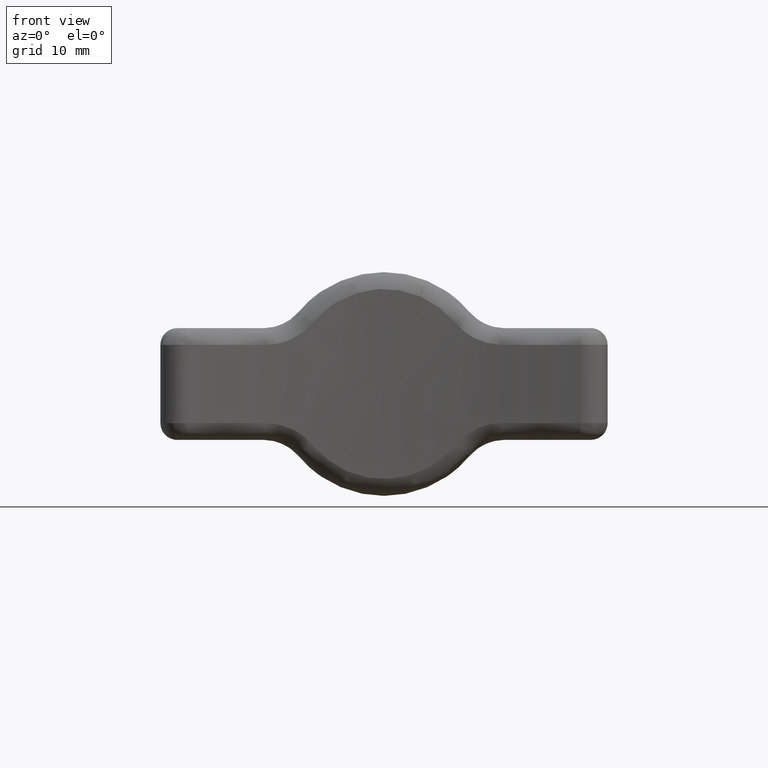
[diagram: clean part render]
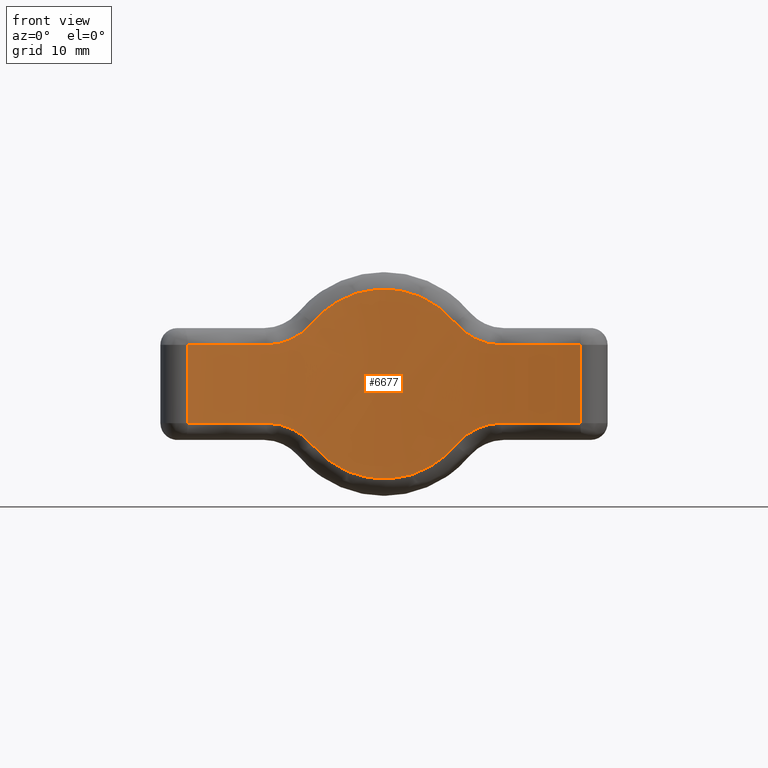
[diagram: same view with one face highlighted and labeled with its STEP entity id]
A machine part, front view. The second image highlights one B-rep face of the part: STEP entity #6677.
In plain terms, the highlighted face is a freeform B-spline surface patch.
Its self-contained STEP definition (entity closure, byte-faithful):
#5173=CARTESIAN_POINT('',(-10.526435067400540,-26.895561022378502,-3.500000237480295));
#5174=VERTEX_POINT('',#5173);
#5191=CARTESIAN_POINT('',(-6.391050002650499,-26.455693917424099,-5.464285978425500));
#5192=VERTEX_POINT('',#5191);
#5208=CARTESIAN_POINT('',(-10.526435067400540,-26.895561022378502,-3.500000237480295));
#5209=CARTESIAN_POINT('',(-10.130577779867281,-26.843017106241280,-3.500000237480295));
#5210=CARTESIAN_POINT('',(-9.741852792492267,-26.794433492696822,-3.543825192933341));
#5211=CARTESIAN_POINT('',(-9.169118083600051,-26.726959905391102,-3.672933948192796));
#5212=CARTESIAN_POINT('',(-8.979948021334016,-26.705371621441060,-3.726626277660668));
#5213=CARTESIAN_POINT('',(-8.698910053578945,-26.674295213789790,-3.823718820202365));
#5214=CARTESIAN_POINT('',(-8.605988525210959,-26.664188731852828,-3.858761242788340));
#5215=CARTESIAN_POINT('',(-8.423315668423788,-26.644635218307300,-3.933490456663368));
#5216=CARTESIAN_POINT('',(-8.333312132431573,-26.635160189398690,-3.973262377902760));
#5217=CARTESIAN_POINT('',(-7.889849734918664,-26.589213306685760,-4.183951560300534));
#5218=CARTESIAN_POINT('',(-7.555825866689244,-26.556996409445400,-4.389944560689119));
#5219=CARTESIAN_POINT('',(-7.164827280628694,-26.521450257237319,-4.695127743851798));
#5220=CARTESIAN_POINT('',(-7.087892220328410,-26.514572848698311,-4.758660424650226));
#5221=CARTESIAN_POINT('',(-6.938228932694358,-26.501402173134242,-4.889342066564419));
#5222=CARTESIAN_POINT('',(-6.865313523243134,-26.495091600107980,-4.956628074293811));
#5223=CARTESIAN_POINT('',(-6.652269647967869,-26.476932445369780,-5.164270768396017));
#5224=CARTESIAN_POINT('',(-6.517826621629490,-26.465854337697600,-5.310394985060838));
#5225=CARTESIAN_POINT('',(-6.391050002650499,-26.455693917424050,-5.464285978425500));
#5226=B_SPLINE_CURVE_WITH_KNOTS('',3,(#5208,#5209,#5210,#5211,#5212,#5213,#5214,#5215,#5216,#5217,#5218,#5219,#5220,#5221,#5222,#5223,#5224,#5225),.UNSPECIFIED.,.F.,.U.,(4,2,2,2,2,2,2,2,4),(0.0,0.250000000000001,0.375000000000001,0.437500000000001,0.500000000000001,0.750000000000000,0.812500000000000,0.875000000000000,1.0),.UNSPECIFIED.);
#5227=EDGE_CURVE('',#5174,#5192,#5226,.T.);
#5282=CARTESIAN_POINT('',(-17.560976556879499,-28.151220440487648,-3.500000237480315));
#5283=VERTEX_POINT('',#5282);
#5299=CARTESIAN_POINT('',(-17.560976556879510,-28.151220440487581,-3.500000237480315));
#5300=CARTESIAN_POINT('',(-14.071773200395381,-27.366149679970167,-3.500000237480315));
#5301=CARTESIAN_POINT('',(-10.526435067400559,-26.895561022378430,-3.500000237480315));
#5309=(BOUNDED_CURVE()B_SPLINE_CURVE(2,(#5299,#5300,#5301),.UNSPECIFIED.,.F.,.U.)CURVE()GEOMETRIC_REPRESENTATION_ITEM()QUASI_UNIFORM_CURVE()RATIONAL_B_SPLINE_CURVE((1.0,0.999002208266553,1.0))REPRESENTATION_ITEM(''));
#5310=EDGE_CURVE('',#5283,#5174,#5309,.T.);
#5383=CARTESIAN_POINT('',(-17.560976556879499,-28.151220440487648,3.500000237480430));
#5384=VERTEX_POINT('',#5383);
#5385=CARTESIAN_POINT('',(-17.560976556879499,-28.151220440487648,3.500000237480430));
#5386=CARTESIAN_POINT('',(-17.560976556879499,-28.151220440487648,-3.500000237480315));
#5387=QUASI_UNIFORM_CURVE('',1,(#5385,#5386),.UNSPECIFIED.,.F.,.U.);
#5388=EDGE_CURVE('',#5384,#5283,#5387,.T.);
#5524=CARTESIAN_POINT('',(-10.526435067400520,-26.895561022378502,3.500000237480390));
#5525=VERTEX_POINT('',#5524);
#5543=CARTESIAN_POINT('',(-10.526435067400520,-26.895561022378502,3.500000237480390));
#5544=CARTESIAN_POINT('',(-14.071773200395429,-27.366149679970174,3.500000237480205));
#5545=CARTESIAN_POINT('',(-17.560976556879499,-28.151220440487648,3.500000237480430));
#5553=(BOUNDED_CURVE()B_SPLINE_CURVE(2,(#5543,#5544,#5545),.UNSPECIFIED.,.F.,.U.)CURVE()GEOMETRIC_REPRESENTATION_ITEM()QUASI_UNIFORM_CURVE()RATIONAL_B_SPLINE_CURVE((1.0,0.999002208266553,1.0))REPRESENTATION_ITEM(''));
#5554=EDGE_CURVE('',#5525,#5384,#5553,.T.);
#5637=CARTESIAN_POINT('',(-6.391050002650440,-26.455693917424050,5.464285978425530));
#5638=VERTEX_POINT('',#5637);
#5656=CARTESIAN_POINT('',(-6.391050002650440,-26.455693917424099,5.464285978425530));
#5657=CARTESIAN_POINT('',(-6.644561526023513,-26.476011414786040,5.156554627996201));
#5658=CARTESIAN_POINT('',(-6.926476486287818,-26.499809816724969,4.882011662247812));
#5659=CARTESIAN_POINT('',(-7.390578083616430,-26.541959861097911,4.518515766391896));
#5660=CARTESIAN_POINT('',(-7.552210279049481,-26.557092200470571,4.405473781155308));
#5661=CARTESIAN_POINT('',(-7.805444856683725,-26.581647236465489,4.248569104078700));
#5662=CARTESIAN_POINT('',(-7.891406317371629,-26.590118854423601,4.198557946793994));
#5663=CARTESIAN_POINT('',(-8.064844133601683,-26.607501867703409,4.103955566847487));
#5664=CARTESIAN_POINT('',(-8.152544396330605,-26.616434862528500,4.059223357296433));
#5665=CARTESIAN_POINT('',(-8.595872474024892,-26.662348628633950,3.848214622662055));
#5666=CARTESIAN_POINT('',(-8.965808263239190,-26.703051094687119,3.719448839352444));
#5667=CARTESIAN_POINT('',(-9.447777756667655,-26.759778502978310,3.609955608933347));
#5668=CARTESIAN_POINT('',(-9.545207589877181,-26.771425025578392,3.590668079098883));
#5669=CARTESIAN_POINT('',(-9.740089976543416,-26.795087319057089,3.557722971424100));
#5670=CARTESIAN_POINT('',(-9.837785120604163,-26.807131278989221,3.544004644401598));
#5671=CARTESIAN_POINT('',(-10.131625364801611,-26.843910005436989,3.511053658320358));
#5672=CARTESIAN_POINT('',(-10.328522801363929,-26.869291238199569,3.500000237480392));
#5673=CARTESIAN_POINT('',(-10.526435067400520,-26.895561022378502,3.500000237480395));
#5674=B_SPLINE_CURVE_WITH_KNOTS('',3,(#5656,#5657,#5658,#5659,#5660,#5661,#5662,#5663,#5664,#5665,#5666,#5667,#5668,#5669,#5670,#5671,#5672,#5673),.UNSPECIFIED.,.F.,.U.,(4,2,2,2,2,2,2,2,4),(0.0,0.250000000000001,0.375000000000002,0.437500000000002,0.500000000000003,0.750000000000002,0.812500000000001,0.875000000000001,1.0),.UNSPECIFIED.);
#5675=EDGE_CURVE('',#5638,#5525,#5674,.T.);
#5838=CARTESIAN_POINT('',(6.391050002650680,-26.455693917424099,5.464285978425240));
#5839=VERTEX_POINT('',#5838);
#5857=CARTESIAN_POINT('',(6.391050002650680,-26.455693917424099,5.464285978425240));
#5858=CARTESIAN_POINT('',(6.293371294482209,-26.447865528129910,5.582855739566408));
#5859=CARTESIAN_POINT('',(6.192551212521130,-26.439965804935401,5.698666154532956));
#5860=CARTESIAN_POINT('',(5.984611256463105,-26.424094030338640,5.924758156369663));
#5861=CARTESIAN_POINT('',(5.877787165092706,-26.416145202658750,6.034703189377578));
#5862=CARTESIAN_POINT('',(5.550064845316837,-26.392452512122329,6.354191130201660));
#5863=CARTESIAN_POINT('',(5.321464958937026,-26.376826482880421,6.553935483708296));
#5864=CARTESIAN_POINT('',(4.844319461126886,-26.346449118828509,6.927353736671916));
#5865=CARTESIAN_POINT('',(4.595774147143893,-26.331696709733759,7.101027939006829));
#5866=CARTESIAN_POINT('',(4.207678117812892,-26.310625856935729,7.341601143357362));
#5867=CARTESIAN_POINT('',(4.075760856174740,-26.303778640014290,7.418461896308346));
#5868=CARTESIAN_POINT('',(3.873963189471393,-26.293824918530490,7.528638740507209));
#5869=CARTESIAN_POINT('',(3.805935370491146,-26.290554954739779,7.564564914237273));
#5870=CARTESIAN_POINT('',(3.669259629578118,-26.284162488292541,7.634329849871089));
#5871=CARTESIAN_POINT('',(3.600587977800833,-26.281038495891011,7.668186084892131));
#5872=CARTESIAN_POINT('',(3.255578311411480,-26.265793243121351,7.832391563014685));
#5873=CARTESIAN_POINT('',(2.693023749169934,-26.243800612429890,8.062728614404328));
#5874=CARTESIAN_POINT('',(2.109795327234481,-26.227274589099220,8.229598032148205));
#5875=CARTESIAN_POINT('',(1.664494700295122,-26.217180771376839,8.330581952710229));
#5876=CARTESIAN_POINT('',(1.514745077920458,-26.214199672433580,8.360206383309411));
#5877=CARTESIAN_POINT('',(1.212556025246131,-26.209047920839520,8.411207230286349));
#5878=CARTESIAN_POINT('',(1.059823314265704,-26.206876522884620,8.432590748546417));
#5879=CARTESIAN_POINT('',(0.603313721844945,-26.201696783408849,8.483485306310628));
#5880=CARTESIAN_POINT('',(0.299490858484786,-26.199986383095052,8.500141399010468));
#5881=CARTESIAN_POINT('',(-0.307149426189229,-26.200015420566789,8.499857760532898));
#5882=CARTESIAN_POINT('',(-0.609966787867177,-26.201754928634731,8.482916023127569));
#5883=CARTESIAN_POINT('',(-1.063432710124047,-26.206926348565489,8.432100135845277));
#5884=CARTESIAN_POINT('',(-1.214461055659348,-26.209077190037029,8.410918337501544));
#5885=CARTESIAN_POINT('',(-1.516259375190561,-26.214228732856419,8.359917819930477));
#5886=CARTESIAN_POINT('',(-1.667498245100921,-26.217241416038760,8.329978891333608));
#5887=CARTESIAN_POINT('',(-2.115885746064728,-26.227427824248380,8.228057516104993));
#5888=CARTESIAN_POINT('',(-2.408460575317957,-26.235749639772159,8.144006378914602));
#5889=CARTESIAN_POINT('',(-2.981362303135902,-26.255059590918869,7.944817275486904));
#5890=CARTESIAN_POINT('',(-3.261687912672313,-26.266048531550378,7.829676086979580));
#5891=CARTESIAN_POINT('',(-3.672992325864676,-26.284245407263320,7.633627168148545));
#5892=CARTESIAN_POINT('',(-3.808559781608591,-26.290596630739721,7.564379440235155));
#5893=CARTESIAN_POINT('',(-4.009579428731145,-26.300515365174160,7.454579200501201));
#5894=CARTESIAN_POINT('',(-4.076197167955161,-26.303886918577849,7.416990447931961));
#5895=CARTESIAN_POINT('',(-4.208647195805665,-26.310754430173802,7.339814974892612));
#5896=CARTESIAN_POINT('',(-4.274573353347285,-26.314255631156222,7.300167804702229));
#5897=CARTESIAN_POINT('',(-4.600409187918978,-26.331957232025651,7.098016321114653));
#5898=CARTESIAN_POINT('',(-4.849842462669082,-26.346784124241360,6.923355170303833));
#5899=CARTESIAN_POINT('',(-5.327145426791576,-26.377205138535071,6.549158428926537));
#5900=CARTESIAN_POINT('',(-5.555012192955783,-26.392800404205008,6.349619546492324));
#5901=CARTESIAN_POINT('',(-5.989288152477979,-26.424216108500790,5.925748121795833));
#5902=CARTESIAN_POINT('',(-6.195699057992465,-26.440037657503670,5.701417644897261));
#5903=CARTESIAN_POINT('',(-6.391050002650438,-26.455693917424050,5.464285978425533));
#5904=B_SPLINE_CURVE_WITH_KNOTS('',3,(#5857,#5858,#5859,#5860,#5861,#5862,#5863,#5864,#5865,#5866,#5867,#5868,#5869,#5870,#5871,#5872,#5873,#5874,#5875,#5876,#5877,#5878,#5879,#5880,#5881,#5882,#5883,#5884,#5885,#5886,#5887,#5888,#5889,#5890,#5891,#5892,#5893,#5894,#5895,#5896,#5897,#5898,#5899,#5900,#5901,#5902,#5903),.UNSPECIFIED.,.F.,.U.,(4,2,2,2,2,2,2,2,1,2,2,2,2,2,2,2,2,2,2,2,2,2,2,4),(0.0,0.031250000000000,0.062500000000000,0.125000000000000,0.187500000000000,0.218750000000000,0.234375000000000,0.250000000000000,0.312500000000000,0.375000000000000,0.406250000000000,0.437500000000000,0.500000000000000,0.562500000000000,0.593750000000001,0.625000000000001,0.687500000000001,0.750000000000001,0.781250000000001,0.796875000000001,0.812500000000001,0.875000000000001,0.937500000000000,1.0),.UNSPECIFIED.);
#5905=EDGE_CURVE('',#5839,#5638,#5904,.T.);
#5948=CARTESIAN_POINT('',(10.526435067400760,-26.895561022378502,3.500000237479940));
#5949=VERTEX_POINT('',#5948);
#5965=CARTESIAN_POINT('',(10.526435067400760,-26.895561022378502,3.500000237479910));
#5966=CARTESIAN_POINT('',(10.130577779867490,-26.843017106241280,3.500000237479916));
#5967=CARTESIAN_POINT('',(9.741852792492461,-26.794433492696861,3.543825192932974));
#5968=CARTESIAN_POINT('',(9.169118083600241,-26.726959905391130,3.672933948192443));
#5969=CARTESIAN_POINT('',(8.979948021334199,-26.705371621441099,3.726626277660321));
#5970=CARTESIAN_POINT('',(8.698910053579125,-26.674295213789811,3.823718820202027));
#5971=CARTESIAN_POINT('',(8.605988525211142,-26.664188731852860,3.858761242788001));
#5972=CARTESIAN_POINT('',(8.423315668423971,-26.644635218307329,3.933490456663035));
#5973=CARTESIAN_POINT('',(8.333312132431756,-26.635160189398690,3.973262377902429));
#5974=CARTESIAN_POINT('',(7.889849734918846,-26.589213306685771,4.183951560300216));
#5975=CARTESIAN_POINT('',(7.555825866689423,-26.556996409445411,4.389944560688815));
#5976=CARTESIAN_POINT('',(7.164827280628876,-26.521450257237358,4.695127743851512));
#5977=CARTESIAN_POINT('',(7.087892220328591,-26.514572848698350,4.758660424649944));
#5978=CARTESIAN_POINT('',(6.938228932694535,-26.501402173134281,4.889342066564142));
#5979=CARTESIAN_POINT('',(6.865313523243318,-26.495091600107990,4.956628074293538));
#5980=CARTESIAN_POINT('',(6.652269647968057,-26.476932445369801,5.164270768395753));
#5981=CARTESIAN_POINT('',(6.517826621629672,-26.465854337697660,5.310394985060573));
#5982=CARTESIAN_POINT('',(6.391050002650680,-26.455693917424099,5.464285978425240));
#5983=B_SPLINE_CURVE_WITH_KNOTS('',3,(#5965,#5966,#5967,#5968,#5969,#5970,#5971,#5972,#5973,#5974,#5975,#5976,#5977,#5978,#5979,#5980,#5981,#5982),.UNSPECIFIED.,.F.,.U.,(4,2,2,2,2,2,2,2,4),(0.0,0.249999999999998,0.374999999999998,0.437499999999998,0.499999999999998,0.749999999999999,0.812499999999999,0.874999999999999,1.0),.UNSPECIFIED.);
#5984=EDGE_CURVE('',#5949,#5839,#5983,.T.);
#6039=CARTESIAN_POINT('',(17.560976557017550,-28.151220440518699,3.500000237479870));
#6040=VERTEX_POINT('',#6039);
#6058=CARTESIAN_POINT('',(17.560976557017550,-28.151220440518699,3.500000237479870));
#6059=CARTESIAN_POINT('',(14.071773200465794,-27.366149679979525,3.500000237480095));
#6060=CARTESIAN_POINT('',(10.526435067400760,-26.895561022378502,3.500000237479940));
#6068=(BOUNDED_CURVE()B_SPLINE_CURVE(2,(#6058,#6059,#6060),.UNSPECIFIED.,.F.,.U.)CURVE()GEOMETRIC_REPRESENTATION_ITEM()QUASI_UNIFORM_CURVE()RATIONAL_B_SPLINE_CURVE((1.0,0.999002208266513,1.0))REPRESENTATION_ITEM(''));
#6069=EDGE_CURVE('',#6040,#5949,#6068,.T.);
#6144=CARTESIAN_POINT('',(17.560976557017550,-28.151220440518699,-3.500000237480095));
#6145=VERTEX_POINT('',#6144);
#6146=CARTESIAN_POINT('',(17.560976557017550,-28.151220440518699,-3.500000237480095));
#6147=CARTESIAN_POINT('',(17.560976557017550,-28.151220440518699,3.500000237479870));
#6148=QUASI_UNIFORM_CURVE('',1,(#6146,#6147),.UNSPECIFIED.,.F.,.U.);
#6149=EDGE_CURVE('',#6145,#6040,#6148,.T.);
#6281=CARTESIAN_POINT('',(10.526435067400699,-26.895561022378502,-3.500000237480095));
#6282=VERTEX_POINT('',#6281);
#6298=CARTESIAN_POINT('',(10.526435067400710,-26.895561022378448,-3.500000237480095));
#6299=CARTESIAN_POINT('',(14.071773200465683,-27.366149679979493,-3.500000237480095));
#6300=CARTESIAN_POINT('',(17.560976557017550,-28.151220440518639,-3.500000237480095));
#6308=(BOUNDED_CURVE()B_SPLINE_CURVE(2,(#6298,#6299,#6300),.UNSPECIFIED.,.F.,.U.)CURVE()GEOMETRIC_REPRESENTATION_ITEM()QUASI_UNIFORM_CURVE()RATIONAL_B_SPLINE_CURVE((1.0,0.999002208266513,1.0))REPRESENTATION_ITEM(''));
#6309=EDGE_CURVE('',#6282,#6145,#6308,.T.);
#6392=CARTESIAN_POINT('',(6.391050002650590,-26.455693917424099,-5.464285978425390));
#6393=VERTEX_POINT('',#6392);
#6411=CARTESIAN_POINT('',(6.391050002650590,-26.455693917424099,-5.464285978425390));
#6412=CARTESIAN_POINT('',(6.644561526023659,-26.476011414786040,-5.156554627996047));
#6413=CARTESIAN_POINT('',(6.926476486287953,-26.499809816724969,-4.882011662247640));
#6414=CARTESIAN_POINT('',(7.390578083616563,-26.541959861097911,-4.518515766391700));
#6415=CARTESIAN_POINT('',(7.552210279049608,-26.557092200470581,-4.405473781155101));
#6416=CARTESIAN_POINT('',(7.805444856683858,-26.581647236465511,-4.248569104078484));
#6417=CARTESIAN_POINT('',(7.891406317371766,-26.590118854423618,-4.198557946793775));
#6418=CARTESIAN_POINT('',(8.064844133601826,-26.607501867703441,-4.103955566847262));
#6419=CARTESIAN_POINT('',(8.152544396330741,-26.616434862528539,-4.059223357296203));
#6420=CARTESIAN_POINT('',(8.595872474025027,-26.662348628633978,-3.848214622661806));
#6421=CARTESIAN_POINT('',(8.965808263239339,-26.703051094687119,-3.719448839352182));
#6422=CARTESIAN_POINT('',(9.447777756667806,-26.759778502978310,-3.609955608933071));
#6423=CARTESIAN_POINT('',(9.545207589877345,-26.771425025578409,-3.590668079098604));
#6424=CARTESIAN_POINT('',(9.740089976543583,-26.795087319057100,-3.557722971423816));
#6425=CARTESIAN_POINT('',(9.837785120604334,-26.807131278989232,-3.544004644401311));
#6426=CARTESIAN_POINT('',(10.131625364801780,-26.843910005437010,-3.511053658320066));
#6427=CARTESIAN_POINT('',(10.328522801364111,-26.869291238199580,-3.500000237480096));
#6428=CARTESIAN_POINT('',(10.526435067400699,-26.895561022378502,-3.500000237480095));
#6429=B_SPLINE_CURVE_WITH_KNOTS('',3,(#6411,#6412,#6413,#6414,#6415,#6416,#6417,#6418,#6419,#6420,#6421,#6422,#6423,#6424,#6425,#6426,#6427,#6428),.UNSPECIFIED.,.F.,.U.,(4,2,2,2,2,2,2,2,4),(0.0,0.249999999999998,0.374999999999997,0.437499999999997,0.499999999999997,0.749999999999999,0.812499999999999,0.874999999999999,1.0),.UNSPECIFIED.);
#6430=EDGE_CURVE('',#6393,#6282,#6429,.T.);
#6596=CARTESIAN_POINT('',(-6.391050002650499,-26.455693917424099,-5.464285978425500));
#6597=CARTESIAN_POINT('',(-6.293371294482024,-26.447865528129899,-5.582855739566663));
#6598=CARTESIAN_POINT('',(-6.192551212520942,-26.439965804935380,-5.698666154533206));
#6599=CARTESIAN_POINT('',(-5.984611256462912,-26.424094030338630,-5.924758156369911));
#6600=CARTESIAN_POINT('',(-5.877787165092509,-26.416145202658740,-6.034703189377821));
#6601=CARTESIAN_POINT('',(-5.550064845316629,-26.392452512122318,-6.354191130201890));
#6602=CARTESIAN_POINT('',(-5.321464958936812,-26.376826482880411,-6.553935483708519));
#6603=CARTESIAN_POINT('',(-4.844319461126665,-26.346449118828499,-6.927353736672126));
#6604=CARTESIAN_POINT('',(-4.595774147143669,-26.331696709733780,-7.101027939007035));
#6605=CARTESIAN_POINT('',(-4.207678117812660,-26.310625856935729,-7.341601143357553));
#6606=CARTESIAN_POINT('',(-4.075760856174505,-26.303778640014279,-7.418461896308534));
#6607=CARTESIAN_POINT('',(-3.873963189471159,-26.293824918530479,-7.528638740507391));
#6608=CARTESIAN_POINT('',(-3.805935370490909,-26.290554954739779,-7.564564914237450));
#6609=CARTESIAN_POINT('',(-3.669259629577881,-26.284162488292552,-7.634329849871266));
#6610=CARTESIAN_POINT('',(-3.600587977800593,-26.281038495891011,-7.668186084892303));
#6611=CARTESIAN_POINT('',(-3.255578311411234,-26.265793243121340,-7.832391563014840));
#6612=CARTESIAN_POINT('',(-2.693023749169684,-26.243800612429890,-8.062728614404474));
#6613=CARTESIAN_POINT('',(-2.109795327234226,-26.227274589099220,-8.229598032148330));
#6614=CARTESIAN_POINT('',(-1.664494700294865,-26.217180771376839,-8.330581952710340));
#6615=CARTESIAN_POINT('',(-1.514745077920200,-26.214199672433590,-8.360206383309516));
#6616=CARTESIAN_POINT('',(-1.212556025245875,-26.209047920839520,-8.411207230286445));
#6617=CARTESIAN_POINT('',(-1.059823314265444,-26.206876522884588,-8.432590748546506));
#6618=CARTESIAN_POINT('',(-0.603313721844685,-26.201696783408838,-8.483485306310712));
#6619=CARTESIAN_POINT('',(-0.299490858484526,-26.199986383095041,-8.500141399010534));
#6620=CARTESIAN_POINT('',(0.307149426189487,-26.200015420566778,-8.499857760532946));
#6621=CARTESIAN_POINT('',(0.609966787867433,-26.201754928634720,-8.482916023127606));
#6622=CARTESIAN_POINT('',(1.063432710124301,-26.206926348565489,-8.432100135845300));
#6623=CARTESIAN_POINT('',(1.214461055659600,-26.209077190037039,-8.410918337501569));
#6624=CARTESIAN_POINT('',(1.516259375190810,-26.214228732856430,-8.359917819930489));
#6625=CARTESIAN_POINT('',(1.667498245101171,-26.217241416038771,-8.329978891333617));
#6626=CARTESIAN_POINT('',(2.115885746064975,-26.227427824248391,-8.228057516104988));
#6627=CARTESIAN_POINT('',(2.408460575318199,-26.235749639772170,-8.144006378914588));
#6628=CARTESIAN_POINT('',(2.981362303136137,-26.255059590918862,-7.944817275486866));
#6629=CARTESIAN_POINT('',(3.261687912672542,-26.266048531550361,-7.829676086979534));
#6630=CARTESIAN_POINT('',(3.672992325864899,-26.284245407263299,-7.633627168148484));
#6631=CARTESIAN_POINT('',(3.808559781608812,-26.290596630739721,-7.564379440235094));
#6632=CARTESIAN_POINT('',(4.009579428731362,-26.300515365174160,-7.454579200501135));
#6633=CARTESIAN_POINT('',(4.076197167955377,-26.303886918577859,-7.416990447931890));
#6634=CARTESIAN_POINT('',(4.208647195805880,-26.310754430173802,-7.339814974892537));
#6635=CARTESIAN_POINT('',(4.274573353347497,-26.314255631156229,-7.300167804702151));
#6636=CARTESIAN_POINT('',(4.600409187919185,-26.331957232025680,-7.098016321114570));
#6637=CARTESIAN_POINT('',(4.849842462669281,-26.346784124241381,-6.923355170303743));
#6638=CARTESIAN_POINT('',(5.327145426791764,-26.377205138535071,-6.549158428926424));
#6639=CARTESIAN_POINT('',(5.555012192955961,-26.392800404205040,-6.349619546492209));
#6640=CARTESIAN_POINT('',(5.989288152478144,-26.424216108500818,-5.925748121795701));
#6641=CARTESIAN_POINT('',(6.195699057992623,-26.440037657503680,-5.701417644897120));
#6642=CARTESIAN_POINT('',(6.391050002650591,-26.455693917424050,-5.464285978425379));
#6643=B_SPLINE_CURVE_WITH_KNOTS('',3,(#6596,#6597,#6598,#6599,#6600,#6601,#6602,#6603,#6604,#6605,#6606,#6607,#6608,#6609,#6610,#6611,#6612,#6613,#6614,#6615,#6616,#6617,#6618,#6619,#6620,#6621,#6622,#6623,#6624,#6625,#6626,#6627,#6628,#6629,#6630,#6631,#6632,#6633,#6634,#6635,#6636,#6637,#6638,#6639,#6640,#6641,#6642),.UNSPECIFIED.,.F.,.U.,(4,2,2,2,2,2,2,2,1,2,2,2,2,2,2,2,2,2,2,2,2,2,2,4),(0.0,0.031250000000000,0.062500000000000,0.125000000000000,0.187500000000000,0.218750000000000,0.234375000000000,0.250000000000000,0.312500000000000,0.375000000000000,0.406250000000000,0.437500000000000,0.500000000000001,0.562500000000001,0.593750000000001,0.625000000000001,0.687500000000001,0.750000000000001,0.781250000000001,0.796875000000001,0.812500000000001,0.875000000000000,0.937500000000000,1.0),.UNSPECIFIED.);
#6644=EDGE_CURVE('',#5192,#6393,#6643,.T.);
#6649=CARTESIAN_POINT('',(19.264017451386088,-28.554024420404396,8.925000501603501));
#6650=CARTESIAN_POINT('',(19.264017451386088,-28.554024420404396,-8.935625502200706));
#6651=CARTESIAN_POINT('',(-0.002136247855438,-23.774079339189452,8.925000501603501));
#6652=CARTESIAN_POINT('',(-0.002136247855438,-23.774079339189452,-8.935625502200706));
#6653=CARTESIAN_POINT('',(-19.268042155784471,-28.555023062875570,8.925000501603499));
#6654=CARTESIAN_POINT('',(-19.268042155784471,-28.555023062875570,-8.935625502200706));
#6662=(BOUNDED_SURFACE()B_SPLINE_SURFACE(1,2,((#6649,#6651,#6653),(#6650,#6652,#6654)),.UNSPECIFIED.,.F.,.F.,.U.)B_SPLINE_SURFACE_WITH_KNOTS((2,2),(3,3),(0.0,17.860626003804210),(1.397900494360924,40.506476966118811),.UNSPECIFIED.)GEOMETRIC_REPRESENTATION_ITEM()RATIONAL_B_SPLINE_SURFACE(((0.997740115930822,0.967176474365208,0.995271713662034),(0.997740115930822,0.967176474365208,0.995271713662034)))REPRESENTATION_ITEM('')SURFACE());
#6663=ORIENTED_EDGE('',*,*,#5675,.T.);
#6664=ORIENTED_EDGE('',*,*,#5554,.T.);
#6665=ORIENTED_EDGE('',*,*,#5388,.T.);
#6666=ORIENTED_EDGE('',*,*,#5310,.T.);
#6667=ORIENTED_EDGE('',*,*,#5227,.T.);
#6668=ORIENTED_EDGE('',*,*,#6644,.T.);
#6669=ORIENTED_EDGE('',*,*,#6430,.T.);
#6670=ORIENTED_EDGE('',*,*,#6309,.T.);
#6671=ORIENTED_EDGE('',*,*,#6149,.T.);
#6672=ORIENTED_EDGE('',*,*,#6069,.T.);
#6673=ORIENTED_EDGE('',*,*,#5984,.T.);
#6674=ORIENTED_EDGE('',*,*,#5905,.T.);
#6675=EDGE_LOOP('',(#6663,#6664,#6665,#6666,#6667,#6668,#6669,#6670,#6671,#6672,#6673,#6674));
#6676=FACE_OUTER_BOUND('',#6675,.T.);
#6677=ADVANCED_FACE('',(#6676),#6662,.F.);